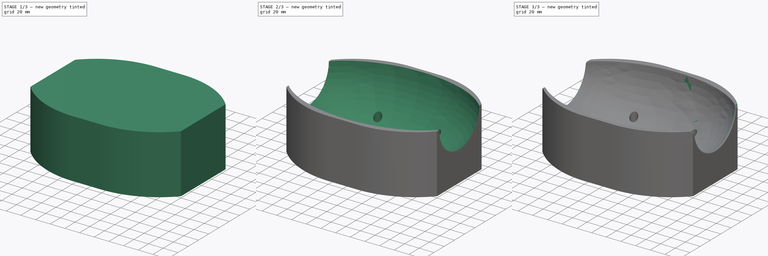
[diagram: build sequence overview — one tinted view per stage of 3, left to right]
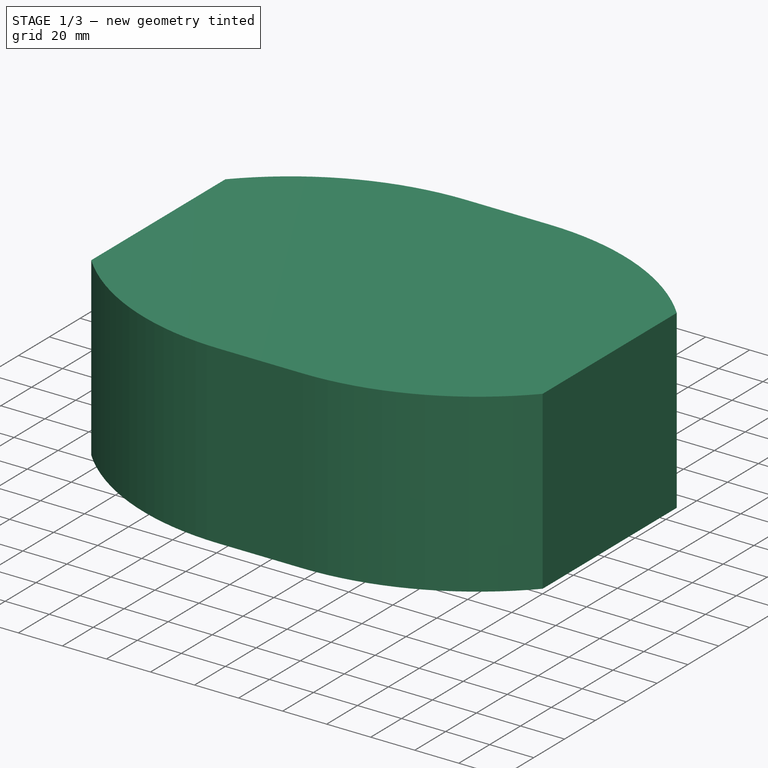
[diagram: stage 1 of 3 — iso view after this stage's code; geometry added in this stage tinted green]
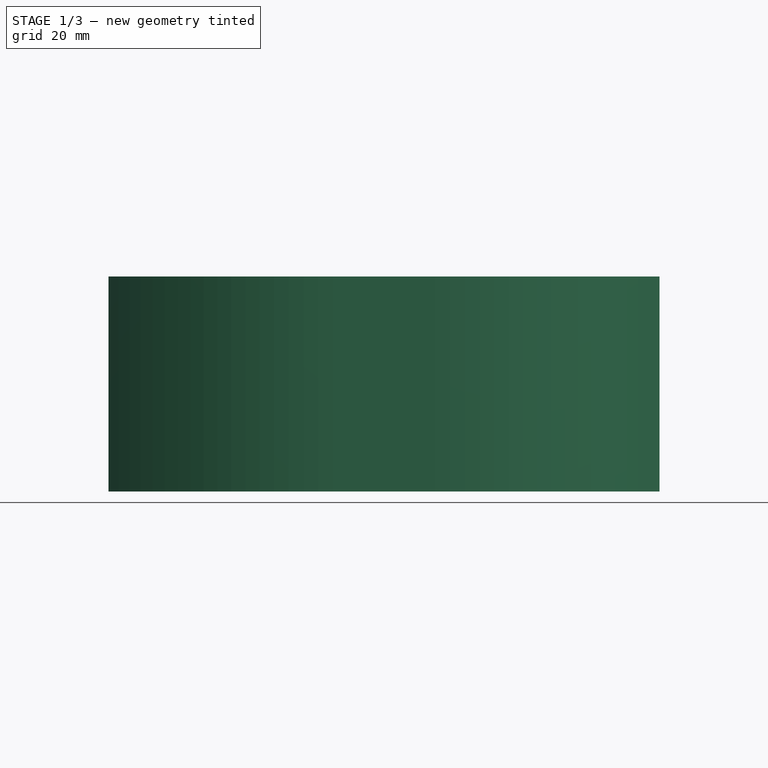
[diagram: stage 1 of 3 — front view after this stage's code; geometry added in this stage tinted green]
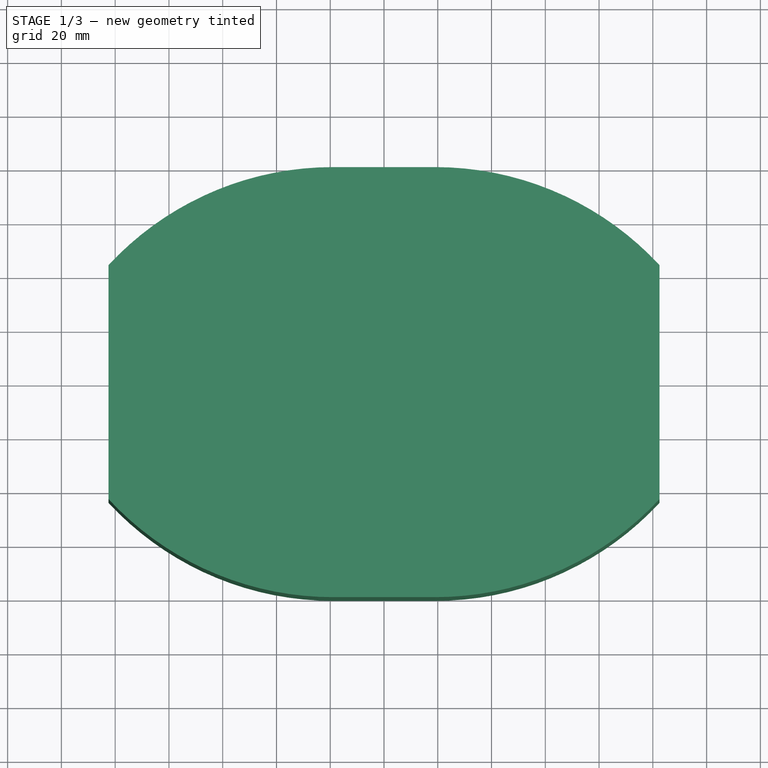
[diagram: stage 1 of 3 — top view after this stage's code; geometry added in this stage tinted green]
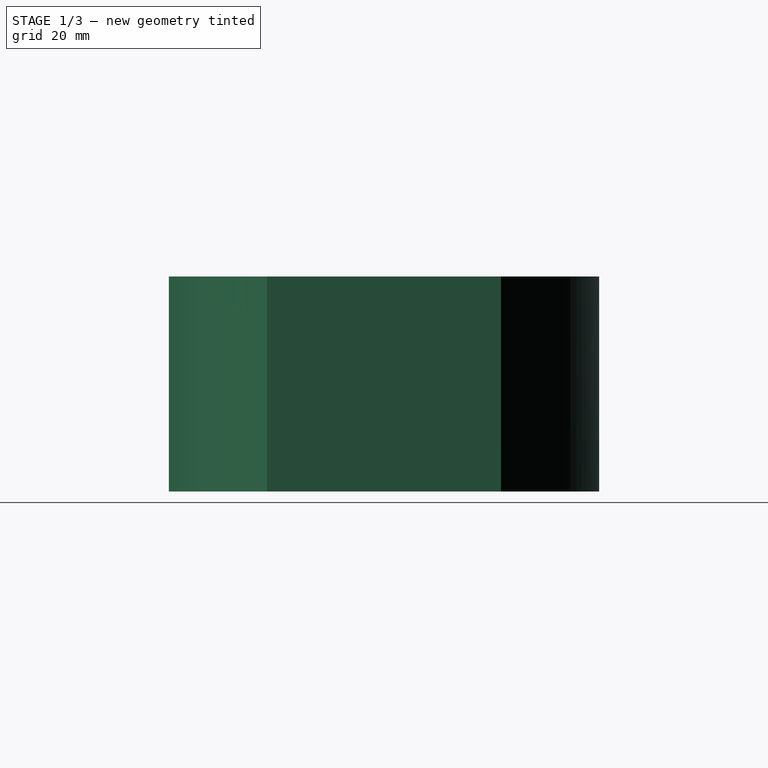
[diagram: stage 1 of 3 — right view after this stage's code; geometry added in this stage tinted green]
FCSTD DOCUMENT  (FreeCAD 0.19R19327 (Git))
Label: CunaV2
License: All rights reserved
LicenseURL: http://en.wikipedia.org/wiki/All_rights_reserved
objects: Sketcher::SketchObject×3, PartDesign::Pocket×2, Part::Fillet×2, PartDesign::Pad×1, Part::Ellipsoid×1, PartDesign::Plane×1, PartDesign::Body×1, Part::Cut×1
note: 15 computed .brp shape members not serialized (recipe doc carries the construction recipe); baked Part::Feature solids carry a one-line shape summary decoded from their .brp

FEATURE [Sketcher::SketchObject] Sketch
  MapMode = 5
  Support = -> [XY_Plane]
  sketch-geometry (16):
    g0: LineSegment [constr] StartX=-102.5 StartY=80 StartZ=0 EndX=102.5 EndY=80 EndZ=0
    g1: LineSegment [constr] StartX=102.5 StartY=80 StartZ=0 EndX=102.5 EndY=-80 EndZ=0
    g2: LineSegment [constr] StartX=102.5 StartY=-80 StartZ=0 EndX=-102.5 EndY=-80 EndZ=0
    g3: LineSegment [constr] StartX=-102.5 StartY=-80 StartZ=0 EndX=-102.5 EndY=80 EndZ=0
    g4: LineSegment StartX=-19 StartY=80 StartZ=0 EndX=19 EndY=80 EndZ=0
    g5: LineSegment StartX=-18.9999 StartY=-80 StartZ=0 EndX=18.9999 EndY=-80 EndZ=0
    g6: LineSegment StartX=-102.5 StartY=43.5 StartZ=0 EndX=-102.5 EndY=-43.5 EndZ=0
    g7: LineSegment StartX=102.5 StartY=43.5 StartZ=0 EndX=102.5 EndY=-43.5 EndZ=0
    g8: ArcOfCircle CenterX=-19 CenterY=-33.7603 CenterZ=0 NormalX=0 NormalY=0 NormalZ=1 AngleXU=0 Radius=113.76 StartAngle=1.5708 EndAngle=2.39499
    g9: ArcOfCircle CenterX=-19 CenterY=33.7603 CenterZ=0 NormalX=0 NormalY=0 NormalZ=1 AngleXU=0 Radius=113.76 StartAngle=3.8882 EndAngle=4.71239
    g10: LineSegment [constr] StartX=-19 StartY=-33.7603 StartZ=0 EndX=19 EndY=-33.7603 EndZ=0
    g11: LineSegment [constr] StartX=19 StartY=-33.7603 StartZ=0 EndX=19 EndY=33.7603 EndZ=0
    g12: LineSegment [constr] StartX=19 StartY=33.7603 StartZ=0 EndX=-19 EndY=33.7603 EndZ=0
    g13: LineSegment [constr] StartX=-19 StartY=33.7603 StartZ=0 EndX=-19 EndY=-33.7603 EndZ=0
    g14: ArcOfCircle CenterX=19 CenterY=-33.7603 CenterZ=0 NormalX=0 NormalY=0 NormalZ=1 AngleXU=0 Radius=113.76 StartAngle=0.746604 EndAngle=1.5708
    g15: ArcOfCircle CenterX=19 CenterY=33.7603 CenterZ=0 NormalX=0 NormalY=0 NormalZ=1 AngleXU=0 Radius=113.76 StartAngle=4.71239 EndAngle=5.53658
  constraints (41):
    c: PointOnObject(g5,g2)
    c: Symmetric(g5,g5,g-2)
    c: PointOnObject(g7,g1)
    c: Symmetric(g7,g7,g-1)
    c: Tangent(g8,g4) = 1.5708
    c: PointOnObject(g4,g0)
    c: DistanceX(g4,g4) = 38
    c: Symmetric(g4,g4,g-2)
    c: Coincident(g0,g3)
    c: Coincident(g0,g1)
    c: Horizontal(g0)
    c: Coincident(g2,g3)
    c: Coincident(g1,g2)
    c: Horizontal(g2)
    c: Symmetric(g0,g1,g-1)
    c: Vertical(g3)
    c: PointOnObject(g6,g3)
    c: Vertical(g1)
    c: DistanceX(g0,g0) = 205
    c: DistanceY(g1,g1) = 160
    c: Coincident(g8,g6)
    c: Symmetric(g6,g6,g-1)
    c: DistanceY(g6,g6) = 87
    c: Coincident(g9,g6)
    c: Coincident(g9,g5)
    c: DistanceY(g7,g7) = 87
    c: Coincident(g10,g11)
    c: Coincident(g11,g12)
    c: Coincident(g12,g13)
    c: Coincident(g13,g10)
    c: Horizontal(g10)
    c: Horizontal(g12)
    c: Coincident(g10,g8)
    c: Symmetric(g8,g11,g-1)
    c: Coincident(g9,g12)
    c: Coincident(g14,g10)
    c: Coincident(g14,g4)
    c: Coincident(g14,g7)
    c: Coincident(g15,g11)
    c: Coincident(g15,g7)
    c: Coincident(g15,g5)
FEATURE [PartDesign::Pad] Pad
  Length = 80
  Length2 = 100
  Profile = -> Sketch
  Type = 0
FEATURE [Part::Ellipsoid] Ellipsoid  label="Elipsoide"
  Angle1 = -90
  Angle2 = 90
  Angle3 = 360
  AttacherType = Attacher::AttachEngine3D
  Placement = pos=(0,0,80) rot=(0,0,1;0rad)
  Radius1 = 75
  Radius2 = 120
  Radius3 = 75
FEATURE [Sketcher::SketchObject] Sketch001
  MapMode = 5
  Support = -> [XY_Plane]
  sketch-geometry (8):
    g0: LineSegment [constr] StartX=-40 StartY=45 StartZ=0 EndX=40 EndY=45 EndZ=0
    g1: LineSegment [constr] StartX=40 StartY=45 StartZ=0 EndX=40 EndY=-45 EndZ=0
    g2: LineSegment [constr] StartX=40 StartY=-45 StartZ=0 EndX=-40 EndY=-45 EndZ=0
    g3: LineSegment [constr] StartX=-40 StartY=-45 StartZ=0 EndX=-40 EndY=45 EndZ=0
    g4: Circle CenterX=-40 CenterY=45 CenterZ=0 NormalX=0 NormalY=0 NormalZ=1 AngleXU=0 Radius=3
    g5: Circle CenterX=40 CenterY=45 CenterZ=0 NormalX=0 NormalY=0 NormalZ=1 AngleXU=0 Radius=3
    g6: Circle CenterX=-40 CenterY=-45 CenterZ=0 NormalX=0 NormalY=0 NormalZ=1 AngleXU=0 Radius=3
    g7: Circle CenterX=40 CenterY=-45 CenterZ=0 NormalX=0 NormalY=0 NormalZ=1 AngleXU=0 Radius=3
  constraints (19):
    c: Coincident(g0,g1)
    c: Coincident(g1,g2)
    c: Coincident(g2,g3)
    c: Coincident(g3,g0)
    c: Horizontal(g0)
    c: Horizontal(g2)
    c: Vertical(g1)
    c: Vertical(g3)
    c: Symmetric(g0,g1,g-1)
    c: DistanceY(g3,g3) = 90
    c: DistanceX(g0,g0) = 80
    c: Coincident(g4,g0)
    c: Coincident(g5,g0)
    c: Equal(g6,g7)
    c: Equal(g7,g5)
    c: Equal(g5,g4)
    c: Radius(g6) = 3
    c: Coincident(g6,g2)
    c: Coincident(g1,g7)
FEATURE [PartDesign::Pocket] Pocket
  BaseFeature = -> Pad
  Length = 8
  Length2 = 100
  Profile = -> Sketch001
  Reversed = true
  Type = 0
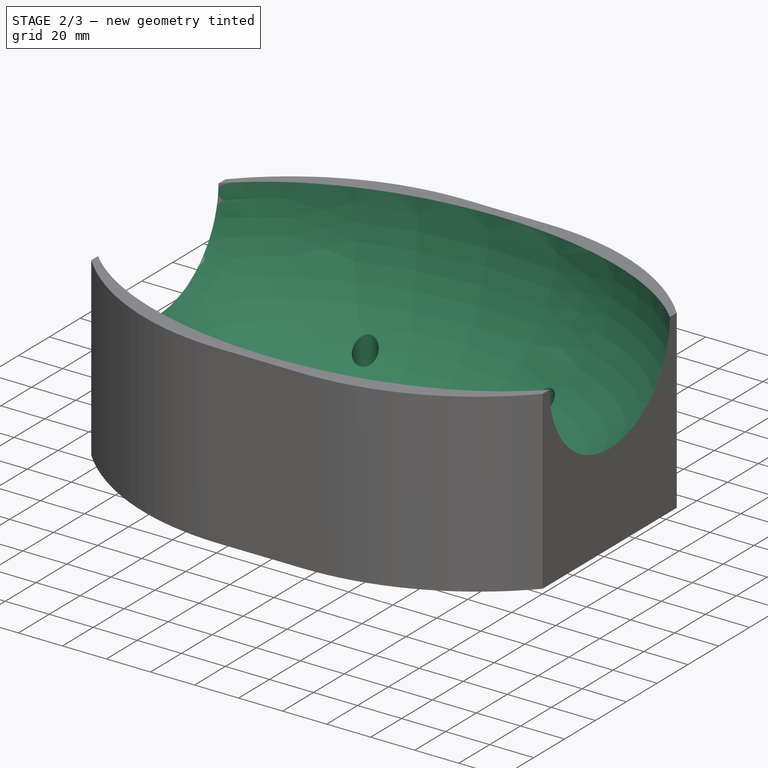
[diagram: stage 2 of 3 — iso view after this stage's code; geometry added in this stage tinted green]
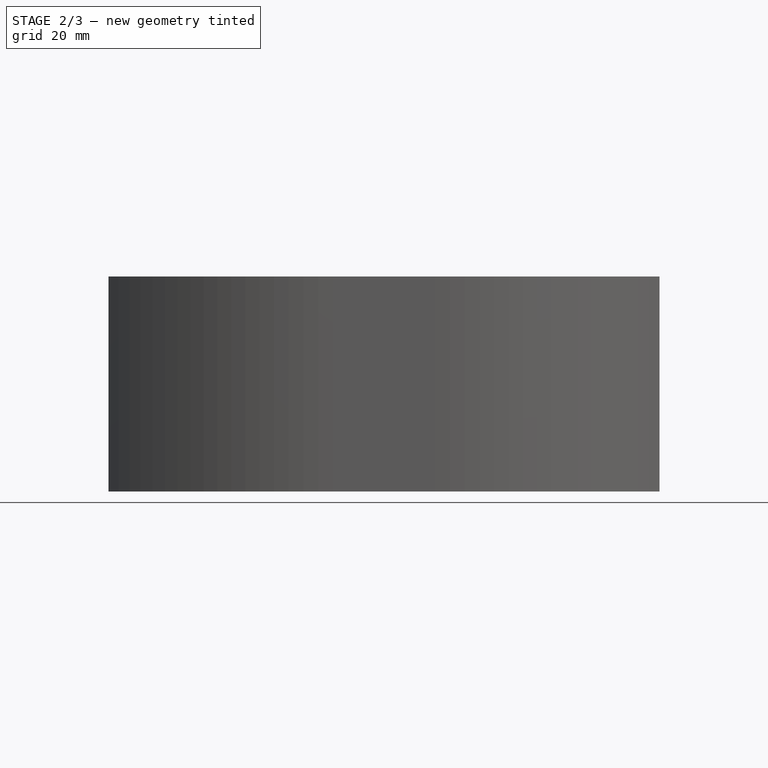
[diagram: stage 2 of 3 — front view after this stage's code; geometry added in this stage tinted green]
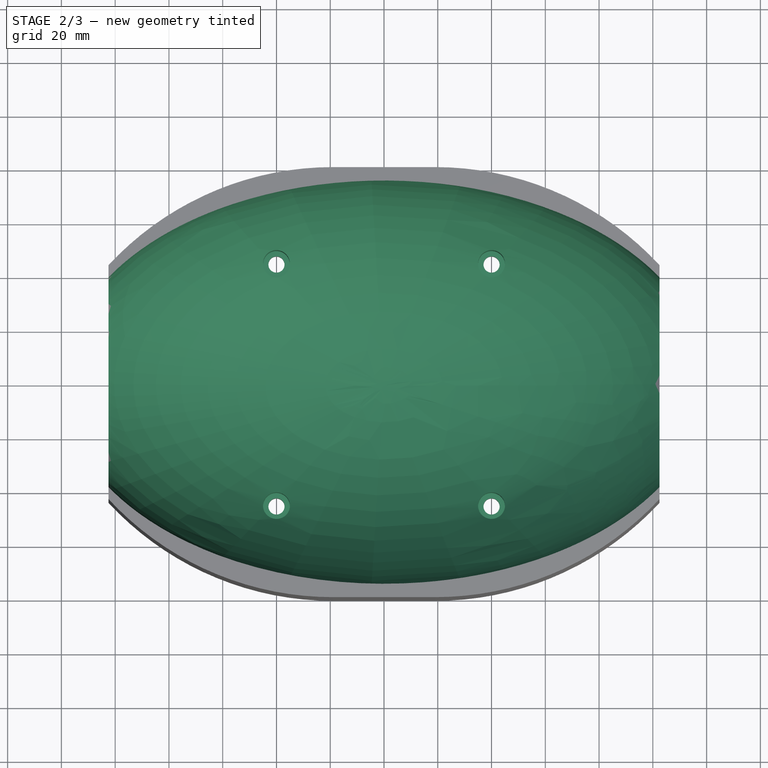
[diagram: stage 2 of 3 — top view after this stage's code; geometry added in this stage tinted green]
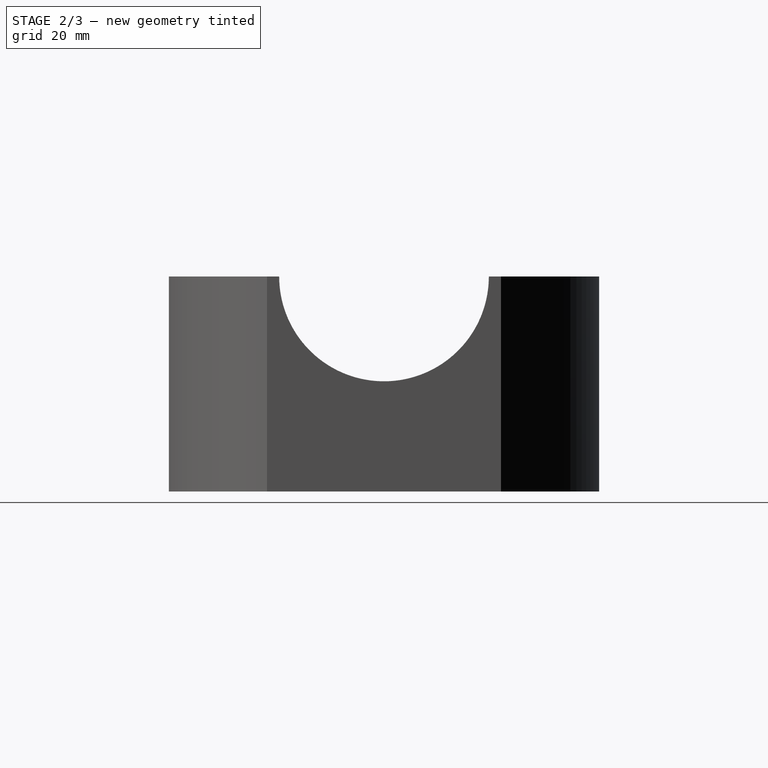
[diagram: stage 2 of 3 — right view after this stage's code; geometry added in this stage tinted green]
FEATURE [PartDesign::Plane] DatumPlane
  Length = 241.222
  MapMode = 5
  Placement = pos=(0,0,8) rot=(1,0,0;3.14159rad)
  ResizeMode = 0
  Support = -> [Pocket]
  Width = 196.222
FEATURE [Sketcher::SketchObject] Sketch002
  MapMode = 5
  Placement = pos=(0,0,8) rot=(1,0,0;3.14159rad)
  Support = -> [DatumPlane]
  sketch-geometry (8):
    g0: LineSegment [constr] StartX=-40 StartY=45 StartZ=0 EndX=40 EndY=45 EndZ=0
    g1: LineSegment [constr] StartX=40 StartY=45 StartZ=0 EndX=40 EndY=-45 EndZ=0
    g2: LineSegment [constr] StartX=40 StartY=-45 StartZ=0 EndX=-40 EndY=-45 EndZ=0
    g3: LineSegment [constr] StartX=-40 StartY=-45 StartZ=0 EndX=-40 EndY=45 EndZ=0
    g4: Circle CenterX=-40 CenterY=45 CenterZ=0 NormalX=0 NormalY=0 NormalZ=1 AngleXU=0 Radius=5
    g5: Circle CenterX=40 CenterY=45 CenterZ=0 NormalX=0 NormalY=0 NormalZ=1 AngleXU=0 Radius=5
    g6: Circle CenterX=40 CenterY=-45 CenterZ=0 NormalX=0 NormalY=0 NormalZ=1 AngleXU=0 Radius=5
    g7: Circle CenterX=-40 CenterY=-45 CenterZ=0 NormalX=0 NormalY=0 NormalZ=1 AngleXU=0 Radius=5
  constraints (19):
    c: Coincident(g0,g1)
    c: Coincident(g1,g2)
    c: Coincident(g2,g3)
    c: Coincident(g3,g0)
    c: Horizontal(g0)
    c: Horizontal(g2)
    c: Vertical(g1)
    c: Vertical(g3)
    c: Symmetric(g0,g1,g-1)
    c: DistanceX(g0,g0) = 80
    c: DistanceY(g3,g3) = 90
    c: Coincident(g4,g0)
    c: Coincident(g5,g0)
    c: Equal(g7,g6)
    c: Equal(g6,g5)
    c: Equal(g5,g4)
    c: Radius(g4) = 5
    c: Coincident(g7,g2)
    c: Coincident(g6,g1)
FEATURE [PartDesign::Pocket] Pocket001
  BaseFeature = -> Pocket
  Length = 20
  Length2 = 100
  Profile = -> Sketch002
  Type = 1
FEATURE [PartDesign::Body] Body
  Group = -> [Sketch,Pad,Sketch001,Pocket,DatumPlane,Sketch002,Pocket001]
  Origin = -> Origin
  Tip = -> Pocket001
FEATURE [Part::Cut] Cut
  Base = -> Pocket001
  Tool = -> Ellipsoid
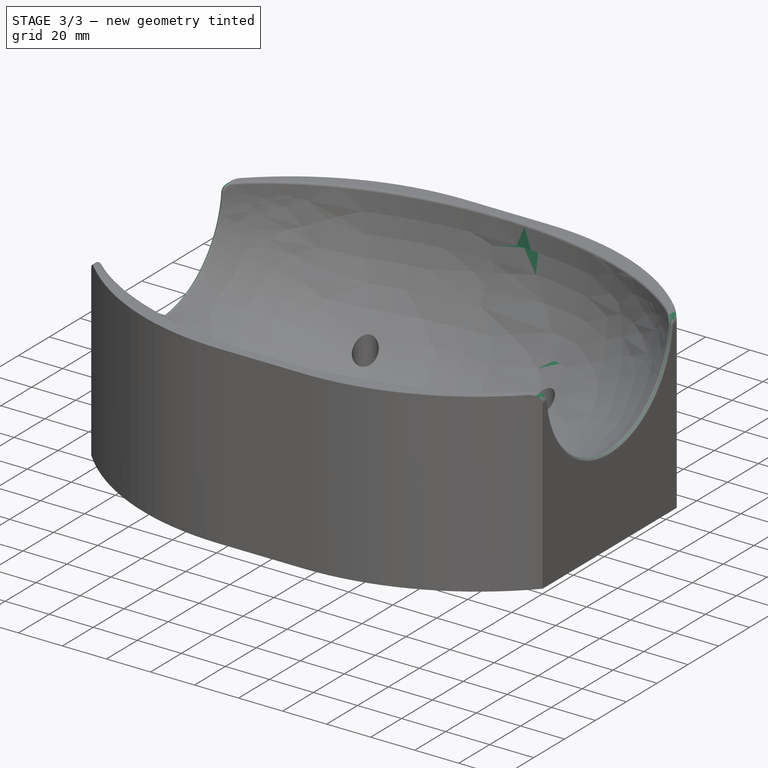
[diagram: stage 3 of 3 — iso view after this stage's code; geometry added in this stage tinted green]
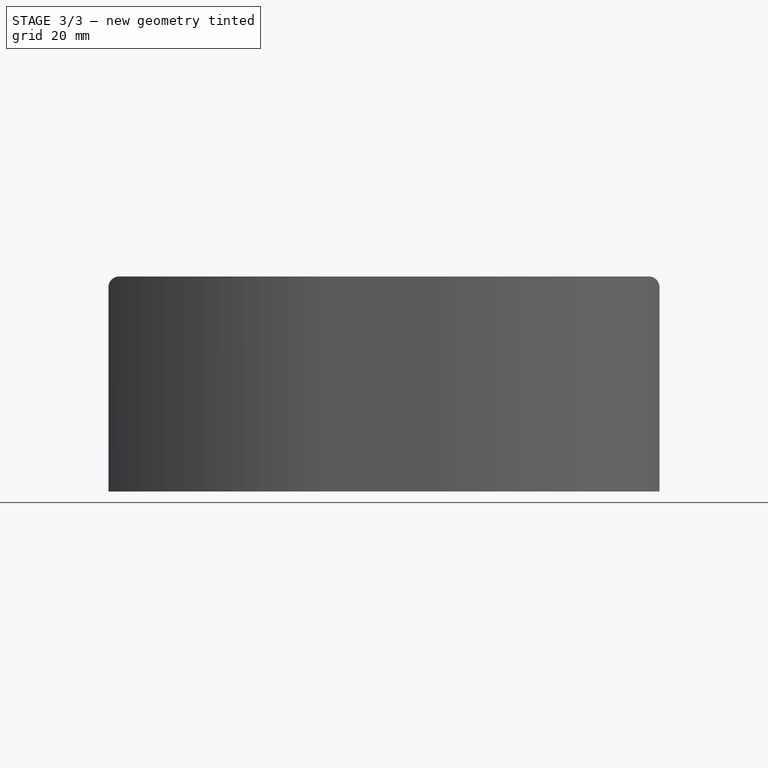
[diagram: stage 3 of 3 — front view after this stage's code; geometry added in this stage tinted green]
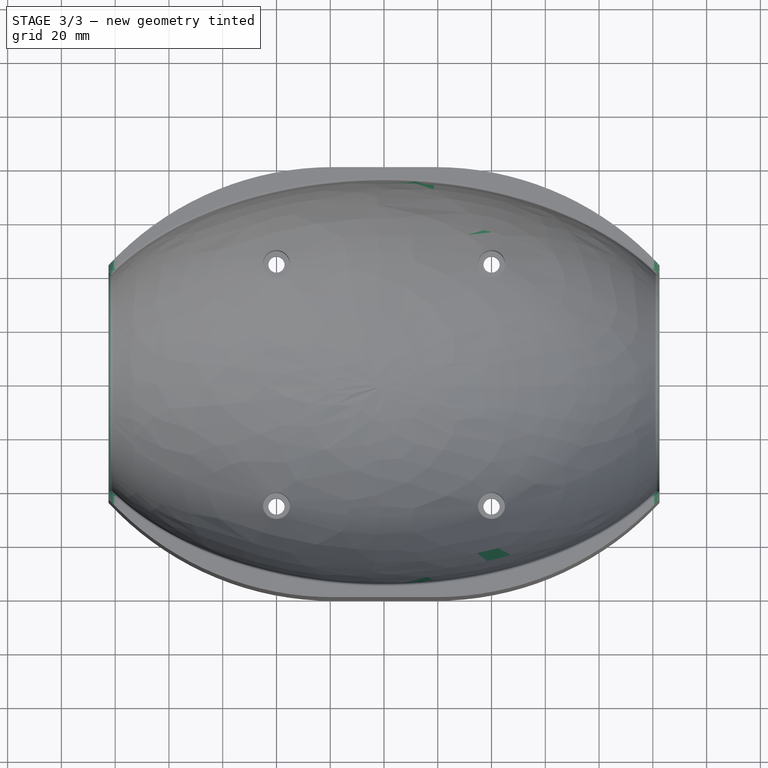
[diagram: stage 3 of 3 — top view after this stage's code; geometry added in this stage tinted green]
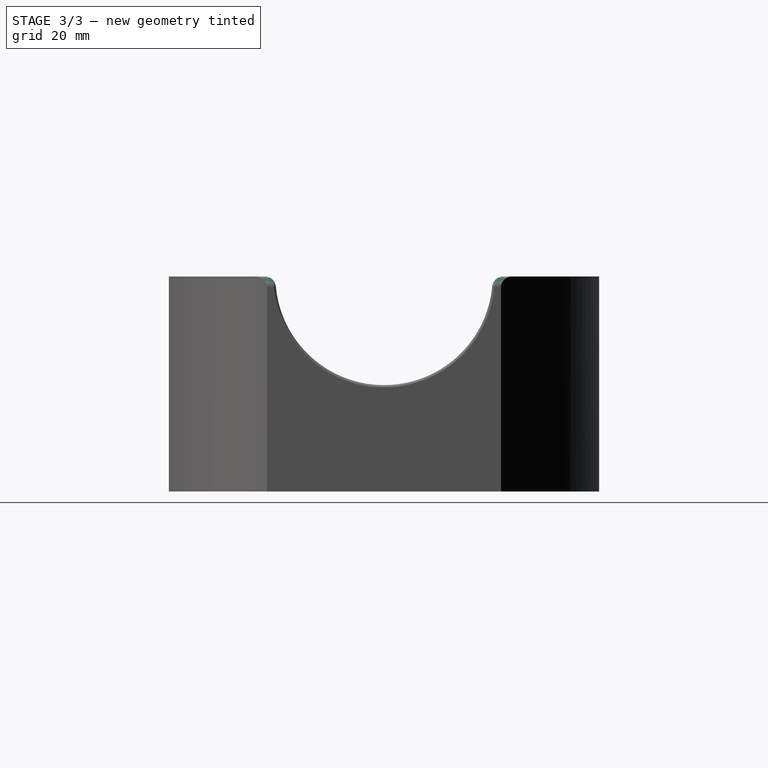
[diagram: stage 3 of 3 — right view after this stage's code; geometry added in this stage tinted green]
FEATURE [Part::Fillet] Fillet
  Base = -> Cut
  Edges = 4 edges r=4: [Edge10,Edge13,Edge24,Edge31]
FEATURE [Part::Fillet] Fillet001
  Base = -> Fillet
  Edges = 1 edges r=1: [Edge38]
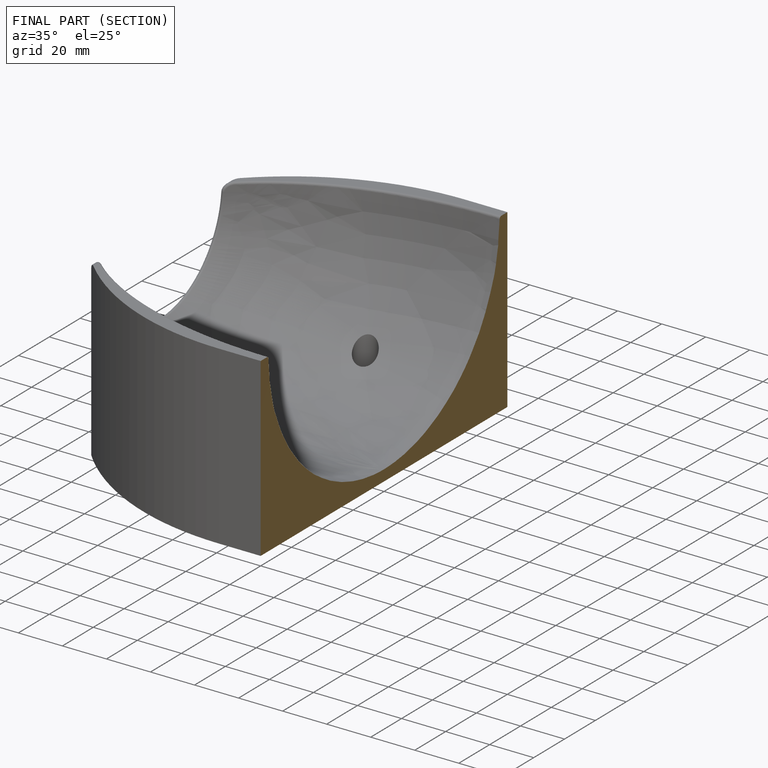
[diagram: finished part — half-section view (interior)]
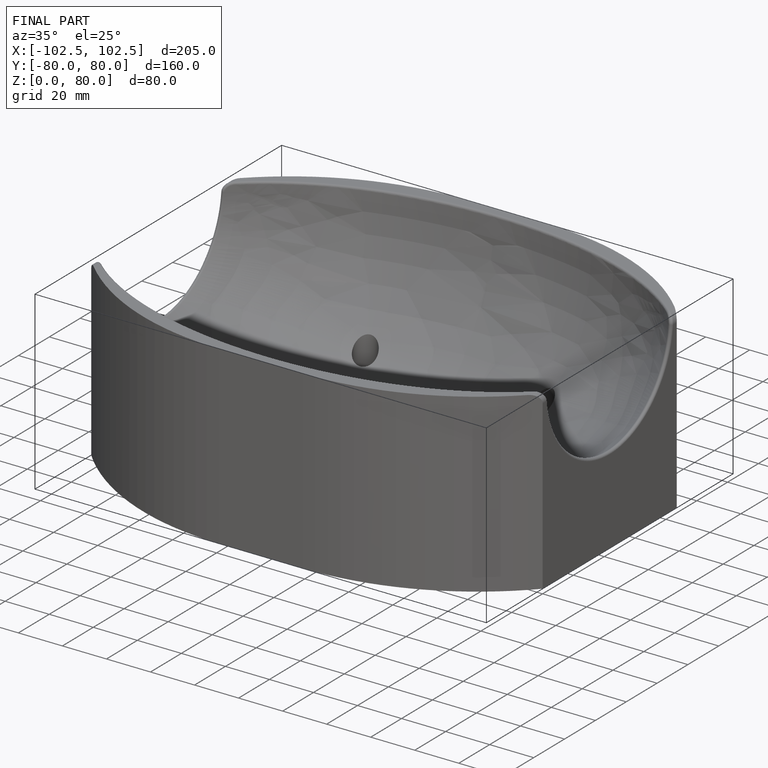
[diagram: finished part — iso view with bounding-box wireframe]
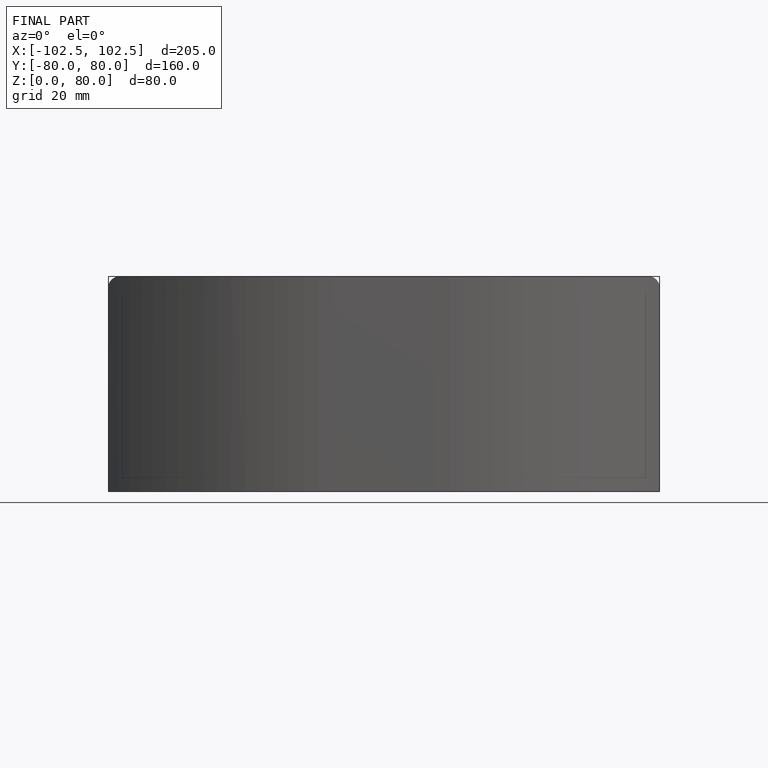
[diagram: finished part — front view with bounding-box wireframe]
